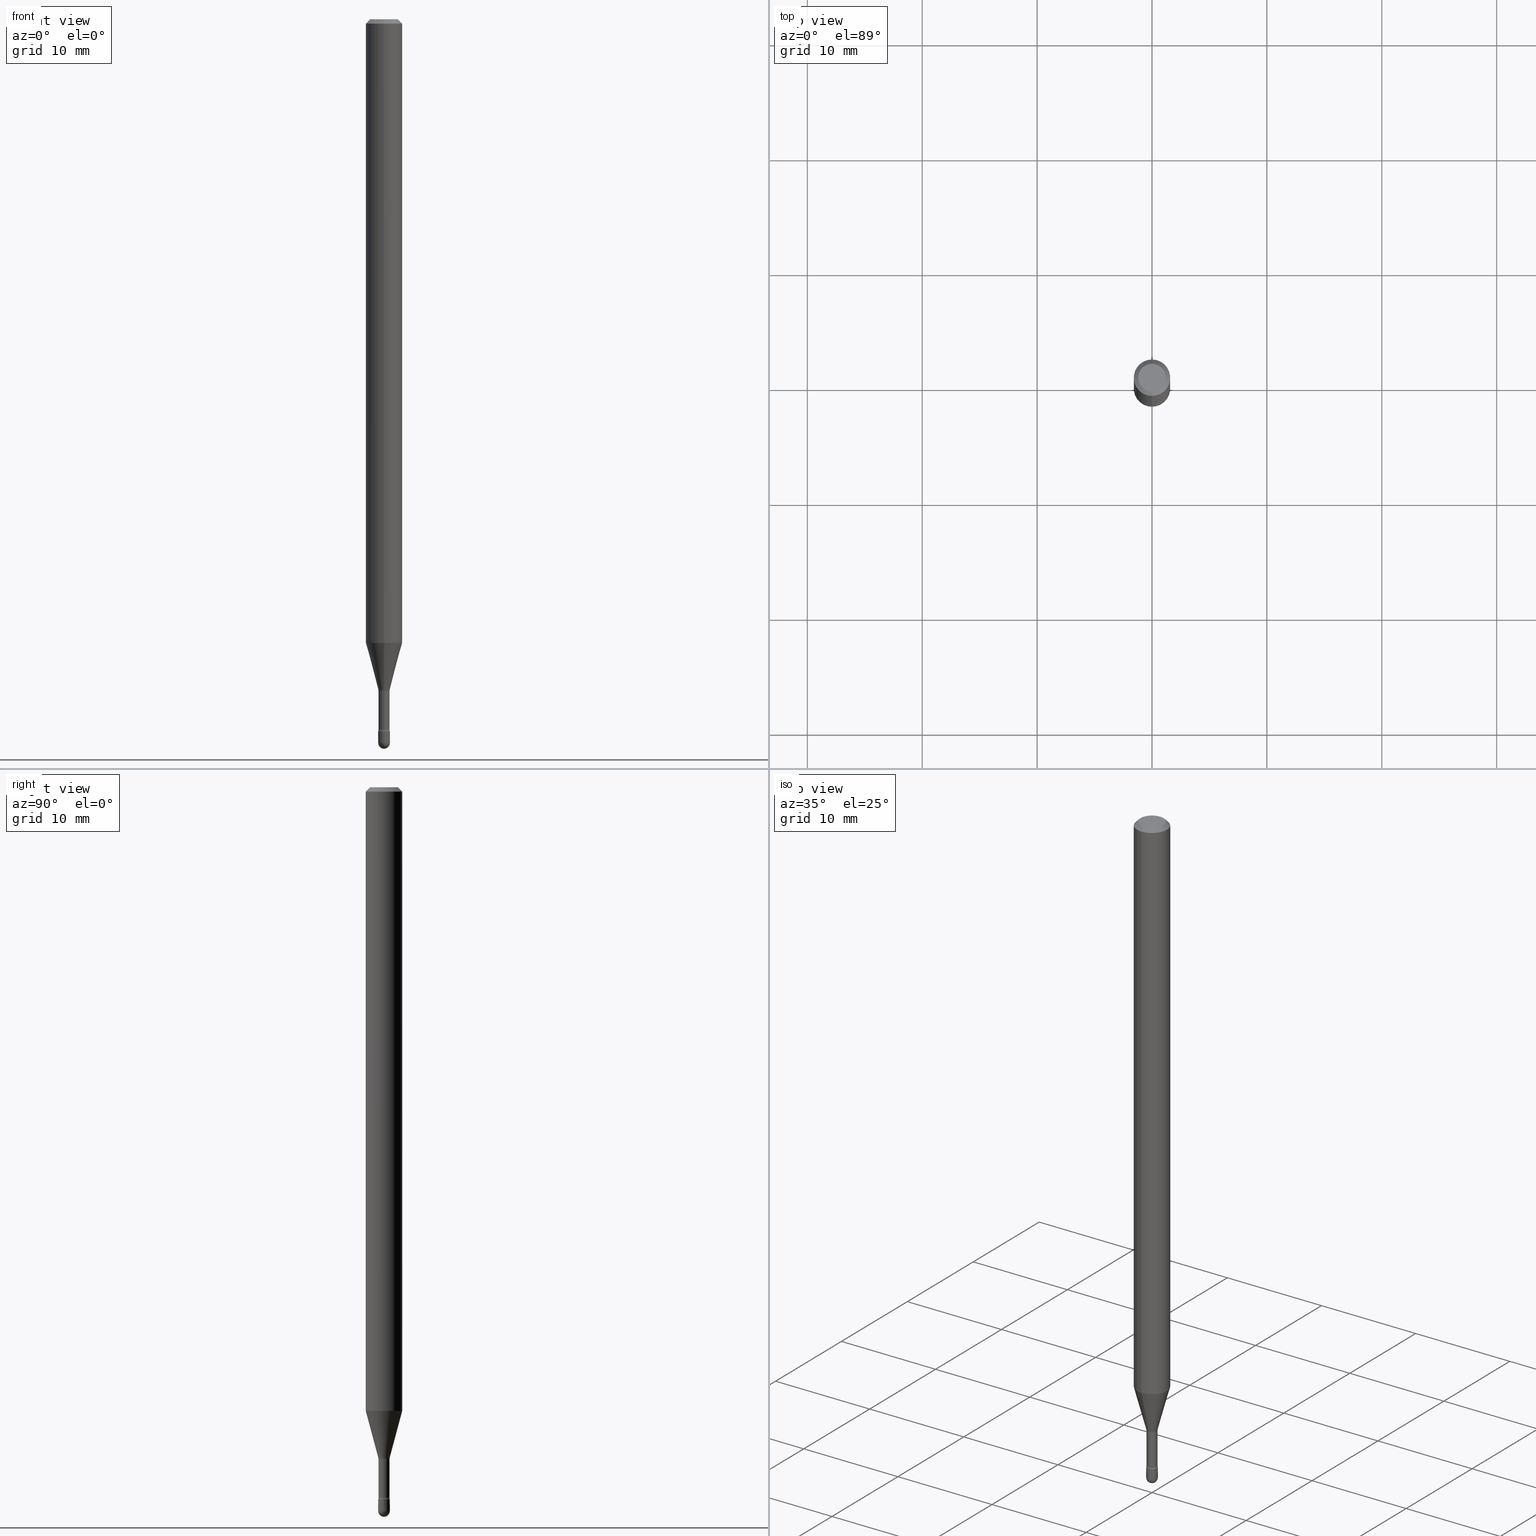
[diagram: canonical four-view strip — front | top / right | iso, engineering-drawing reading convention]
A machine part, canonical four-view strip (front | top / right | iso — engineering-drawing reading convention). The complete STEP part file that produces these views, byte-faithful:
ISO-10303-21;
HEADER;
FILE_DESCRIPTION (( 'STEP AP203' ),
    '1' );
FILE_NAME ('09460.STEP',
    '2024-04-09T23:25:25',
    ( '' ),
    ( '' ),
    'SwSTEP 2.0',
    'SolidWorks 2023',
    '' );
FILE_SCHEMA (( 'CONFIG_CONTROL_DESIGN' ));
ENDSEC;

DATA;
#1 = ORIENTED_EDGE ( 'NONE', *, *, #402, .T. ) ;
#2 = CARTESIAN_POINT ( 'NONE',  ( -1.312796983405020727E-16, -0.01880000000000003543, 5.437145196789325155E-16 ) ) ;
#3 = CARTESIAN_POINT ( 'NONE',  ( 2.401634446869736943E-16, 0.03379999999999155208, -2.434121224617320944 ) ) ;
#4 = AXIS2_PLACEMENT_3D ( 'NONE', #401, #202, #239 ) ;
#5 = FACE_OUTER_BOUND ( 'NONE', #67, .T. ) ;
#6 = DIRECTION ( 'NONE',  ( -1.000000000000000000, 6.982962677686265133E-15, -4.883557194083112340E-29 ) ) ;
#7 = CC_DESIGN_DATE_AND_TIME_ASSIGNMENT ( #375, #427, ( #458 ) ) ;
#8 = EDGE_LOOP ( 'NONE', ( #355, #469, #60, #433 ) ) ;
#9 = DATE_AND_TIME ( #99, #247 ) ;
#10 = DIRECTION ( 'NONE',  ( 1.000000000000000000, -6.982962677686284065E-15, 0.000000000000000000 ) ) ;
#11 = ADVANCED_FACE ( 'NONE', ( #172 ), #544, .F. ) ;
#12 = DIRECTION ( 'NONE',  ( 1.000000000000000000, -6.982962677686265922E-15, 4.883557194083112340E-29 ) ) ;
#13 = CALENDAR_DATE ( 2024, 9, 4 ) ;
#14 = DIRECTION ( 'NONE',  ( -2.438088387897960049E-29, 3.491481338843145188E-15, 1.000000000000000000 ) ) ;
#15 = FACE_OUTER_BOUND ( 'NONE', #523, .T. ) ;
#16 = EDGE_CURVE ( 'NONE', #457, #145, #508, .T. ) ;
#17 = FACE_OUTER_BOUND ( 'NONE', #423, .T. ) ;
#18 = DIRECTION ( 'NONE',  ( 1.839019923739597160E-15, 0.2588190451025245142, 0.9659258262890673130 ) ) ;
#19 = ORIENTED_EDGE ( 'NONE', *, *, #57, .T. ) ;
#20 = DIRECTION ( 'NONE',  ( -6.982962677686262766E-15, -1.000000000000000000, 0.000000000000000000 ) ) ;
#21 = AXIS2_PLACEMENT_3D ( 'NONE', #218, #123, #479 ) ;
#22 = CIRCLE ( 'NONE', #317, 0.02000000000000000042 ) ;
#23 = CARTESIAN_POINT ( 'NONE',  ( -4.364351673553395060E-16, -0.06250000000000748013, -2.136909379709240220 ) ) ;
#24 = CARTESIAN_POINT ( 'NONE',  ( 5.952452556329128680E-29, -8.498853474307259239E-15, -2.434121224617320944 ) ) ;
#25 = APPROVAL_STATUS ( 'not_yet_approved' ) ;
#26 = VERTEX_POINT ( 'NONE', #512 ) ;
#27 = APPROVAL_STATUS ( 'not_yet_approved' ) ;
#28 = CARTESIAN_POINT ( 'NONE',  ( 5.619804982841411344E-29, -8.023902526122054081E-15, -2.298092501787273090 ) ) ;
#29 = PERSON_AND_ORGANIZATION_ROLE ( 'creator' ) ;
#30 = AXIS2_PLACEMENT_3D ( 'NONE', #276, #308, #10 ) ;
#31 = CIRCLE ( 'NONE', #279, 0.01500000000000002720 ) ;
#32 = PRODUCT_DEFINITION_FORMATION_WITH_SPECIFIED_SOURCE ( 'ANY', '', #326, .NOT_KNOWN. ) ;
#33 = ORIENTED_EDGE ( 'NONE', *, *, #402, .F. ) ;
#34 = CC_DESIGN_DATE_AND_TIME_ASSIGNMENT ( #180, #249, ( #55 ) ) ;
#35 = CARTESIAN_POINT ( 'NONE',  ( 5.952567525274821981E-29, -8.498688832233400382E-15, -2.434121224617320944 ) ) ;
#36 = ADVANCED_FACE ( 'NONE', ( #404 ), #203, .T. ) ;
#37 = VERTEX_POINT ( 'NONE', #207 ) ;
#38 = CYLINDRICAL_SURFACE ( 'NONE', #220, 0.01880000000000003543 ) ;
#39 = VERTEX_POINT ( 'NONE', #121 ) ;
#40 = APPLICATION_PROTOCOL_DEFINITION ( 'international standard', 'config_control_design', 1994, #119 ) ;
#41 = COORDINATED_UNIVERSAL_TIME_OFFSET ( 5, 0, .BEHIND. ) ;
#42 = DIRECTION ( 'NONE',  ( 2.445421573966572073E-29, -3.491548978068420720E-15, -1.000000000000000000 ) ) ;
#43 = VECTOR ( 'NONE', #292, 39.37007874015748143 ) ;
#44 = TOROIDAL_SURFACE ( 'NONE', #141, 0.03380000000000004529, 0.01499999999999997169 ) ;
#45 = VERTEX_POINT ( 'NONE', #288 ) ;
#46 = VECTOR ( 'NONE', #59, 39.37007874015748143 ) ;
#47 = DIRECTION ( 'NONE',  ( -2.445421573966572073E-29, 3.491548978068420720E-15, 1.000000000000000000 ) ) ;
#48 = CARTESIAN_POINT ( 'NONE',  ( 2.906514588320848063E-16, 0.01931111260565596122, -2.298092501787273090 ) ) ;
#49 = CARTESIAN_POINT ( 'NONE',  ( 5.966828640478436565E-29, -8.519379506486946099E-15, -2.440000000000000391 ) ) ;
#50 = DIRECTION ( 'NONE',  ( -7.105427357601000281E-15, -1.000000000000000000, 0.000000000000000000 ) ) ;
#51 = LINE ( 'NONE', #492, #561 ) ;
#52 = ORIENTED_EDGE ( 'NONE', *, *, #484, .F. ) ;
#53 = CIRCLE ( 'NONE', #93, 0.02000000000000000042 ) ;
#54 = APPROVAL ( #25, 'UNSPECIFIED' ) ;
#55 = SECURITY_CLASSIFICATION ( '', '', #131 ) ;
#56 = LINE ( 'NONE', #192, #163 ) ;
#57 = EDGE_CURVE ( 'NONE', #468, #107, #199, .T. ) ;
#58 = CARTESIAN_POINT ( 'NONE',  ( 5.619804982841411344E-29, -8.023902526122054081E-15, -2.298092501787273090 ) ) ;
#59 = DIRECTION ( 'NONE',  ( -2.445421573966572073E-29, 3.491548978068420720E-15, 1.000000000000000000 ) ) ;
#60 = ORIENTED_EDGE ( 'NONE', *, *, #222, .T. ) ;
#61 = EDGE_CURVE ( 'NONE', #107, #468, #305, .T. ) ;
#62 = AXIS2_PLACEMENT_3D ( 'NONE', #73, #466, #340 ) ;
#63 = FACE_OUTER_BOUND ( 'NONE', #376, .T. ) ;
#64 = AXIS2_PLACEMENT_3D ( 'NONE', #444, #112, #282 ) ;
#65 = CC_DESIGN_APPROVAL ( #54, ( #55 ) ) ;
#66 = LINE ( 'NONE', #542, #219 ) ;
#67 = EDGE_LOOP ( 'NONE', ( #364, #1, #133, #480 ) ) ;
#68 = MANIFOLD_SOLID_BREP ( 'Body-Move/Copy2[2]', #91 ) ;
#69 = ORIENTED_EDGE ( 'NONE', *, *, #478, .T. ) ;
#70 = CARTESIAN_POINT ( 'NONE',  ( 1.421085471520795991E-16, 0.01999999999999146905, -2.440000000000000391 ) ) ;
#71 = PERSON ( 'UNSPECIFIED', 'UNSPECIFIED', 'UNSPECIFIED', ('UNSPECIFIED'), ('UNSPECIFIED'), ('UNSPECIFIED') ) ;
#72 = EDGE_CURVE ( 'NONE', #302, #301, #85, .T. ) ;
#73 = CARTESIAN_POINT ( 'NONE',  ( 3.316907271900976096E-16, 0.04749999999999999362, 3.181621338320067871E-17 ) ) ;
#74 = CIRCLE ( 'NONE', #353, 0.02000000000000000042 ) ;
#75 = DIRECTION ( 'NONE',  ( -6.982962677686265922E-15, -1.000000000000000000, 0.000000000000000000 ) ) ;
#76 = COORDINATED_UNIVERSAL_TIME_OFFSET ( 5, 0, .BEHIND. ) ;
#77 = CARTESIAN_POINT ( 'NONE',  ( 1.335820343229585224E-16, 0.01879999999999196550, -2.301974787463811012 ) ) ;
#78 = DIRECTION ( 'NONE',  ( 0.000000000000000000, 0.000000000000000000, 1.000000000000000000 ) ) ;
#79 = DIRECTION ( 'NONE',  ( -2.445421573966572073E-29, 3.491548978068420720E-15, 1.000000000000000000 ) ) ;
#80 = CC_DESIGN_PERSON_AND_ORGANIZATION_ASSIGNMENT ( #418, #29, ( #32 ) ) ;
#81 = ORIENTED_EDGE ( 'NONE', *, *, #429, .F. ) ;
#82 = DIRECTION ( 'NONE',  ( -2.445421573966572073E-29, 3.491548978068420720E-15, 1.000000000000000000 ) ) ;
#83 = ADVANCED_FACE ( 'NONE', ( #5 ), #425, .T. ) ;
#84 = APPROVAL_STATUS ( 'not_yet_approved' ) ;
#85 = CIRCLE ( 'NONE', #278, 0.01999999999999989286 ) ;
#86 = CIRCLE ( 'NONE', #30, 0.02000000000000000042 ) ;
#87 = ORIENTED_EDGE ( 'NONE', *, *, #185, .F. ) ;
#88 =( CONVERSION_BASED_UNIT ( 'INCH', #515 ) LENGTH_UNIT ( ) NAMED_UNIT ( #411 ) );
#89 = DIRECTION ( 'NONE',  ( -6.982962677686265922E-15, -1.000000000000000000, 3.491548978068421114E-15 ) ) ;
#90 = APPROVAL_DATE_TIME ( #344, #356 ) ;
#91 = CLOSED_SHELL ( 'NONE', ( #417, #497, #154, #118, #83, #387, #198, #531, #337, #11, #370, #558, #493, #191 ) ) ;
#92 = EDGE_CURVE ( 'NONE', #107, #45, #169, .T. ) ;
#93 = AXIS2_PLACEMENT_3D ( 'NONE', #49, #47, #271 ) ;
#94 = AXIS2_PLACEMENT_3D ( 'NONE', #554, #261, #178 ) ;
#95 = DIRECTION ( 'NONE',  ( -2.445421573966572073E-29, 3.491548978068420720E-15, 1.000000000000000000 ) ) ;
#96 = ORIENTED_EDGE ( 'NONE', *, *, #262, .T. ) ;
#97 = APPROVAL_ROLE ( '' ) ;
#98 = CARTESIAN_POINT ( 'NONE',  ( 5.629407535367409882E-29, -8.037302012917312840E-15, -2.301974787463811012 ) ) ;
#99 = CALENDAR_DATE ( 2024, 9, 4 ) ;
#100 = DIRECTION ( 'NONE',  ( 1.000000000000000000, -6.982962677686235945E-15, 0.000000000000000000 ) ) ;
#101 = AXIS2_PLACEMENT_3D ( 'NONE', #158, #330, #254 ) ;
#102 = AXIS2_PLACEMENT_3D ( 'NONE', #223, #319, #528 ) ;
#103 = AXIS2_PLACEMENT_3D ( 'NONE', #35, #82, #461 ) ;
#104 = SPHERICAL_SURFACE ( 'NONE', #201, 0.01999999999999989286 ) ;
#105 = ORIENTED_EDGE ( 'NONE', *, *, #92, .T. ) ;
#106 = SPHERICAL_SURFACE ( 'NONE', #496, 0.01999999999999989286 ) ;
#107 = VERTEX_POINT ( 'NONE', #48 ) ;
#108 = CYLINDRICAL_SURFACE ( 'NONE', #230, 0.01880000000000003543 ) ;
#109 = EDGE_LOOP ( 'NONE', ( #33, #128, #69, #231 ) ) ;
#110 = COORDINATED_UNIVERSAL_TIME_OFFSET ( 5, 0, .BEHIND. ) ;
#111 = AXIS2_PLACEMENT_3D ( 'NONE', #24, #79, #386 ) ;
#112 = DIRECTION ( 'NONE',  ( -2.445421573966572073E-29, 3.491548978068420720E-15, 1.000000000000000000 ) ) ;
#113 = APPROVAL_PERSON_ORGANIZATION ( #379, #356, #471 ) ;
#114 = CIRCLE ( 'NONE', #94, 0.04749999999999999362 ) ;
#115 = DIRECTION ( 'NONE',  ( -1.000000000000000000, 6.982962677686265922E-15, -4.883557194083112340E-29 ) ) ;
#116 = PLANE ( 'NONE',  #324 ) ;
#117 = ORIENTED_EDGE ( 'NONE', *, *, #525, .T. ) ;
#118 = ADVANCED_FACE ( 'NONE', ( #463 ), #267, .T. ) ;
#119 = APPLICATION_CONTEXT ( 'configuration controlled 3d designs of mechanical parts and assemblies' ) ;
#120 = DIRECTION ( 'NONE',  ( -2.445468806185136597E-29, 3.491481338843145583E-15, 1.000000000000000000 ) ) ;
#121 = CARTESIAN_POINT ( 'NONE',  ( 4.440892098501151740E-16, 0.06249999999999995143, -0.01500000000000030129 ) ) ;
#122 = CIRCLE ( 'NONE', #431, 0.01499999999999997689 ) ;
#123 = DIRECTION ( 'NONE',  ( -2.445421573966572073E-29, 3.491548978068420720E-15, 1.000000000000000000 ) ) ;
#124 = EDGE_LOOP ( 'NONE', ( #410, #450, #434, #87, #136 ) ) ;
#125 = DIRECTION ( 'NONE',  ( 1.000000000000000000, -6.982962677686235945E-15, 0.000000000000000000 ) ) ;
#126 = DATE_AND_TIME ( #162, #552 ) ;
#127 = EDGE_CURVE ( 'NONE', #145, #26, #245, .T. ) ;
#128 = ORIENTED_EDGE ( 'NONE', *, *, #140, .T. ) ;
#129 = ORIENTED_EDGE ( 'NONE', *, *, #439, .T. ) ;
#130 = DIRECTION ( 'NONE',  ( 1.000000000000000000, -6.982962677686284065E-15, 0.000000000000000000 ) ) ;
#131 = SECURITY_CLASSIFICATION_LEVEL ( 'unclassified' ) ;
#132 = CIRCLE ( 'NONE', #102, 0.06250000000000000000 ) ;
#133 = ORIENTED_EDGE ( 'NONE', *, *, #453, .F. ) ;
#134 = CARTESIAN_POINT ( 'NONE',  ( 0.000000000000000000, 0.000000000000000000, 0.000000000000000000 ) ) ;
#135 = EDGE_CURVE ( 'NONE', #37, #39, #248, .T. ) ;
#136 = ORIENTED_EDGE ( 'NONE', *, *, #464, .T. ) ;
#137 = CARTESIAN_POINT ( 'NONE',  ( 3.668132360949878113E-31, -5.237323467102660391E-17, -0.01500000000000008271 ) ) ;
#138 = ORIENTED_EDGE ( 'NONE', *, *, #405, .T. ) ;
#139 = CARTESIAN_POINT ( 'NONE',  ( -1.421085471519589527E-16, -0.02000000000000860464, -2.480000000000000426 ) ) ;
#140 = EDGE_CURVE ( 'NONE', #45, #327, #481, .T. ) ;
#141 = AXIS2_PLACEMENT_3D ( 'NONE', #265, #409, #372 ) ;
#142 = DIRECTION ( 'NONE',  ( -4.851104656540964275E-15, -0.7071067811865500152, -0.7071067811865450192 ) ) ;
#143 = FACE_OUTER_BOUND ( 'NONE', #173, .T. ) ;
#144 = EDGE_LOOP ( 'NONE', ( #310, #296 ) ) ;
#145 = VERTEX_POINT ( 'NONE', #77 ) ;
#146 = CARTESIAN_POINT ( 'NONE',  ( -4.364351673553912750E-16, -0.06250000000000005551, -0.01499999999999986587 ) ) ;
#147 = ORIENTED_EDGE ( 'NONE', *, *, #281, .T. ) ;
#148 = AXIS2_PLACEMENT_3D ( 'NONE', #149, #314, #527 ) ;
#149 = CARTESIAN_POINT ( 'NONE',  ( 0.000000000000000000, 0.000000000000000000, 0.000000000000000000 ) ) ;
#150 = DIRECTION ( 'NONE',  ( -2.445421573966572073E-29, 3.491548978068420720E-15, 1.000000000000000000 ) ) ;
#151 = DIRECTION ( 'NONE',  ( -6.982962677686265133E-15, -1.000000000000000000, 0.000000000000000000 ) ) ;
#152 = AXIS2_PLACEMENT_3D ( 'NONE', #98, #485, #530 ) ;
#153 = DIRECTION ( 'NONE',  ( 1.000000000000000000, -7.105427357601001070E-15, 4.926316336883689215E-29 ) ) ;
#154 = ADVANCED_FACE ( 'NONE', ( #166 ), #44, .F. ) ;
#155 = CARTESIAN_POINT ( 'NONE',  ( -1.396592535536655829E-16, -0.02000000000000850750, -2.440000000000000391 ) ) ;
#156 = DIRECTION ( 'NONE',  ( -6.982962677686265922E-15, -1.000000000000000000, 0.000000000000000000 ) ) ;
#157 = DIRECTION ( 'NONE',  ( -2.445421573966572073E-29, 3.491548978068420720E-15, 1.000000000000000000 ) ) ;
#158 = CARTESIAN_POINT ( 'NONE',  ( 0.000000000000000000, 0.000000000000000000, 0.000000000000000000 ) ) ;
#159 = ORIENTED_EDGE ( 'NONE', *, *, #443, .T. ) ;
#160 = CARTESIAN_POINT ( 'NONE',  ( 5.629298807991117552E-29, -8.037457716708539274E-15, -2.301974787463811012 ) ) ;
#161 = ORIENTED_EDGE ( 'NONE', *, *, #268, .F. ) ;
#162 = CALENDAR_DATE ( 2024, 9, 4 ) ;
#163 = VECTOR ( 'NONE', #225, 39.37007874015748143 ) ;
#164 = EDGE_CURVE ( 'NONE', #507, #457, #398, .T. ) ;
#165 = APPROVAL_PERSON_ORGANIZATION ( #416, #413, #97 ) ;
#166 = FACE_OUTER_BOUND ( 'NONE', #260, .T. ) ;
#167 = ORIENTED_EDGE ( 'NONE', *, *, #232, .T. ) ;
#168 = DIRECTION ( 'NONE',  ( -2.445421573966572073E-29, 3.491548978068420720E-15, 1.000000000000000000 ) ) ;
#169 = LINE ( 'NONE', #486, #297 ) ;
#170 = ORIENTED_EDGE ( 'NONE', *, *, #298, .T. ) ;
#171 = PERSON_AND_ORGANIZATION ( #71, #238 ) ;
#172 = FACE_OUTER_BOUND ( 'NONE', #430, .T. ) ;
#173 = EDGE_LOOP ( 'NONE', ( #521, #446, #52, #389 ) ) ;
#174 = EDGE_LOOP ( 'NONE', ( #560, #227 ) ) ;
#175 = AXIS2_PLACEMENT_3D ( 'NONE', #58, #95, #274 ) ;
#176 = AXIS2_PLACEMENT_3D ( 'NONE', #134, #78, #206 ) ;
#177 = VERTEX_POINT ( 'NONE', #205 ) ;
#178 = DIRECTION ( 'NONE',  ( -6.982962677686266711E-15, -1.000000000000000000, 3.491548978068420720E-15 ) ) ;
#179 = EDGE_CURVE ( 'NONE', #457, #507, #406, .T. ) ;
#180 = DATE_AND_TIME ( #549, #506 ) ;
#181 = LINE ( 'NONE', #347, #280 ) ;
#182 = DIRECTION ( 'NONE',  ( 7.105427357601003436E-15, 1.000000000000000000, 0.000000000000000000 ) ) ;
#183 = ORIENTED_EDGE ( 'NONE', *, *, #164, .T. ) ;
#184 = DIRECTION ( 'NONE',  ( -6.982962677686265922E-15, -1.000000000000000000, 3.483106191921935554E-15 ) ) ;
#185 = EDGE_CURVE ( 'NONE', #295, #177, #181, .T. ) ;
#186 = AXIS2_PLACEMENT_3D ( 'NONE', #277, #150, #242 ) ;
#187 = TOROIDAL_SURFACE ( 'NONE', #103, 0.03380000000000004529, 0.01499999999999997169 ) ;
#188 = DIRECTION ( 'NONE',  ( 6.982962677686265133E-15, 1.000000000000000000, 0.000000000000000000 ) ) ;
#189 = ADVANCED_BREP_SHAPE_REPRESENTATION ( '09460', ( #253, #68, #176 ), #399 ) ;
#190 = FACE_OUTER_BOUND ( 'NONE', #408, .T. ) ;
#191 = ADVANCED_FACE ( 'NONE', ( #266 ), #237, .F. ) ;
#192 = CARTESIAN_POINT ( 'NONE',  ( -0.02000000000000000042, 1.421085471520200401E-16, -9.837870180509812545E-31 ) ) ;
#193 = AXIS2_PLACEMENT_3D ( 'NONE', #482, #390, #184 ) ;
#194 = CARTESIAN_POINT ( 'NONE',  ( 3.668132360949878113E-31, -5.237323467102660391E-17, -0.01500000000000008271 ) ) ;
#195 = ADVANCED_FACE ( 'NONE', ( #190 ), #359, .T. ) ;
#196 = DIRECTION ( 'NONE',  ( 2.445421573966572073E-29, -3.491548978068420720E-15, -1.000000000000000000 ) ) ;
#197 = DIRECTION ( 'NONE',  ( 1.000000000000000000, -6.982962677686265922E-15, 4.876176775795935793E-29 ) ) ;
#198 = ADVANCED_FACE ( 'NONE', ( #529 ), #333, .T. ) ;
#199 = CIRCLE ( 'NONE', #550, 0.01931111260566398605 ) ;
#200 = VERTEX_POINT ( 'NONE', #270 ) ;
#201 = AXIS2_PLACEMENT_3D ( 'NONE', #487, #394, #188 ) ;
#202 = DIRECTION ( 'NONE',  ( -2.445421573966572073E-29, 3.491548978068420720E-15, 1.000000000000000000 ) ) ;
#203 = CYLINDRICAL_SURFACE ( 'NONE', #101, 0.02000000000000000042 ) ;
#204 = CARTESIAN_POINT ( 'NONE',  ( 5.619804982841411344E-29, -8.023902526122054081E-15, -2.298092501787273090 ) ) ;
#205 = CARTESIAN_POINT ( 'NONE',  ( 0.02000000000000000042, -8.658873720331001644E-15, -2.440000000000000391 ) ) ;
#206 = DIRECTION ( 'NONE',  ( 1.000000000000000000, 0.000000000000000000, 0.000000000000000000 ) ) ;
#207 = CARTESIAN_POINT ( 'NONE',  ( 3.840629472727447874E-16, 0.04749999999999999362, -2.485923956665947867E-16 ) ) ;
#208 = APPROVAL_DATE_TIME ( #126, #54 ) ;
#209 = DIRECTION ( 'NONE',  ( -6.982962677686267499E-15, -1.000000000000000000, 3.491548978068421114E-15 ) ) ;
#210 = AXIS2_PLACEMENT_3D ( 'NONE', #194, #196, #534 ) ;
#211 = CIRCLE ( 'NONE', #300, 0.06250000000000000000 ) ;
#212 = ORIENTED_EDGE ( 'NONE', *, *, #16, .F. ) ;
#213 =( LENGTH_UNIT ( ) NAMED_UNIT ( * ) SI_UNIT ( $, .METRE. ) );
#214 = ORIENTED_EDGE ( 'NONE', *, *, #61, .F. ) ;
#215 = EDGE_CURVE ( 'NONE', #545, #177, #86, .T. ) ;
#216 = EDGE_LOOP ( 'NONE', ( #373, #488, #138, #129 ) ) ;
#217 = DIRECTION ( 'NONE',  ( -6.982962677686267499E-15, -1.000000000000000000, 3.491548978068421114E-15 ) ) ;
#218 = CARTESIAN_POINT ( 'NONE',  ( 5.225644298752501589E-29, -7.461123760948621165E-15, -2.136909379709240220 ) ) ;
#219 = VECTOR ( 'NONE', #533, 39.37007874015748143 ) ;
#220 = AXIS2_PLACEMENT_3D ( 'NONE', #383, #559, #209 ) ;
#221 = VERTEX_POINT ( 'NONE', #146 ) ;
#222 = EDGE_CURVE ( 'NONE', #468, #327, #489, .T. ) ;
#223 = CARTESIAN_POINT ( 'NONE',  ( 5.225644298752501589E-29, -7.461123760948621165E-15, -2.136909379709240220 ) ) ;
#224 = ORIENTED_EDGE ( 'NONE', *, *, #464, .F. ) ;
#225 = DIRECTION ( 'NONE',  ( -2.445468806185136877E-29, 3.491481338843145188E-15, 1.000000000000000000 ) ) ;
#226 = EDGE_CURVE ( 'NONE', #336, #380, #53, .T. ) ;
#227 = ORIENTED_EDGE ( 'NONE', *, *, #226, .F. ) ;
#228 = COORDINATED_UNIVERSAL_TIME_OFFSET ( 5, 0, .BEHIND. ) ;
#229 = CARTESIAN_POINT ( 'NONE',  ( -1.348487785898921844E-16, -0.01931111260567201088, -2.298092501787273090 ) ) ;
#230 = AXIS2_PLACEMENT_3D ( 'NONE', #335, #168, #217 ) ;
#231 = ORIENTED_EDGE ( 'NONE', *, *, #315, .F. ) ;
#232 = EDGE_CURVE ( 'NONE', #457, #336, #343, .T. ) ;
#233 = DIRECTION ( 'NONE',  ( -2.445468806185136597E-29, 3.491481338843145583E-15, 1.000000000000000000 ) ) ;
#234 = ADVANCED_FACE ( 'NONE', ( #143 ), #104, .T. ) ;
#235 = CARTESIAN_POINT ( 'NONE',  ( 1.396592535537849721E-16, 0.01999999999999147945, -2.440000000000000391 ) ) ;
#236 = CLOSED_SHELL ( 'NONE', ( #36, #234, #445, #275, #195 ) ) ;
#237 = TOROIDAL_SURFACE ( 'NONE', #152, 0.03380000000000000365, 0.01500000000000002720 ) ;
#238 = ORGANIZATION ( 'UNSPECIFIED', 'UNSPECIFIED', '' ) ;
#239 = DIRECTION ( 'NONE',  ( -6.982962677686265922E-15, -1.000000000000000000, 0.000000000000000000 ) ) ;
#240 = PERSON_AND_ORGANIZATION_ROLE ( 'creator' ) ;
#241 = CC_DESIGN_PERSON_AND_ORGANIZATION_ASSIGNMENT ( #258, #565, ( #32 ) ) ;
#242 = DIRECTION ( 'NONE',  ( -6.982962677686265922E-15, -1.000000000000000000, 0.000000000000000000 ) ) ;
#243 = EDGE_CURVE ( 'NONE', #322, #200, #392, .T. ) ;
#244 = CARTESIAN_POINT ( 'NONE',  ( -3.773273898774340269E-16, -0.04749999999999999362, 8.310475724990511314E-17 ) ) ;
#245 = CIRCLE ( 'NONE', #441, 0.01880000000000000074 ) ;
#246 = DIRECTION ( 'NONE',  ( -6.982962677686265922E-15, -1.000000000000000000, 3.483106191921935554E-15 ) ) ;
#247 = LOCAL_TIME ( 19, 25, 25.00000000000000000, #228 ) ;
#248 = LINE ( 'NONE', #454, #384 ) ;
#249 = DATE_TIME_ROLE ( 'classification_date' ) ;
#250 = ORIENTED_EDGE ( 'NONE', *, *, #315, .T. ) ;
#251 = CARTESIAN_POINT ( 'NONE',  ( -0.02000000000000000042, -8.446935546402118183E-15, -2.440000000000000391 ) ) ;
#252 = PRODUCT_DEFINITION_SHAPE ( 'NONE', 'NONE',  #458 ) ;
#253 = MANIFOLD_SOLID_BREP ( 'Body-Move/Copy2[1]', #236 ) ;
#254 = DIRECTION ( 'NONE',  ( 1.000000000000000000, -6.982962677686265922E-15, 4.876176775795935793E-29 ) ) ;
#255 = ORIENTED_EDGE ( 'NONE', *, *, #358, .T. ) ;
#256 = CARTESIAN_POINT ( 'NONE',  ( -1.312796983404428095E-16, -0.01880000000000857374, -2.434121224617320944 ) ) ;
#257 = CIRCLE ( 'NONE', #4, 0.01880000000000000074 ) ;
#258 = PERSON_AND_ORGANIZATION ( #71, #238 ) ;
#259 = CC_DESIGN_APPROVAL ( #356, ( #32 ) ) ;
#260 = EDGE_LOOP ( 'NONE', ( #381, #167, #536, #426 ) ) ;
#261 = DIRECTION ( 'NONE',  ( -2.445421573966572073E-29, 3.491548978068420720E-15, 1.000000000000000000 ) ) ;
#262 = EDGE_CURVE ( 'NONE', #414, #221, #51, .T. ) ;
#263 = CYLINDRICAL_SURFACE ( 'NONE', #432, 0.06250000000000000000 ) ;
#264 = CARTESIAN_POINT ( 'NONE',  ( 6.064762639339139522E-29, -8.658873720331001644E-15, -2.480000000000000426 ) ) ;
#265 = CARTESIAN_POINT ( 'NONE',  ( 5.952567525274821981E-29, -8.498688832233400382E-15, -2.434121224617320944 ) ) ;
#266 = FACE_OUTER_BOUND ( 'NONE', #477, .T. ) ;
#267 = CONICAL_SURFACE ( 'NONE', #273, 0.06250000000000000000, 0.7853981633974483900 ) ;
#268 = EDGE_CURVE ( 'NONE', #327, #45, #132, .T. ) ;
#269 = DIRECTION ( 'NONE',  ( -6.982962677686265922E-15, -1.000000000000000000, 0.000000000000000000 ) ) ;
#270 = CARTESIAN_POINT ( 'NONE',  ( -0.02000000000000000042, -8.446935546402118183E-15, -2.480000000000000426 ) ) ;
#271 = DIRECTION ( 'NONE',  ( -6.982962677686265922E-15, -1.000000000000000000, 0.000000000000000000 ) ) ;
#272 = CARTESIAN_POINT ( 'NONE',  ( 6.064762639339139522E-29, -8.658873720331001644E-15, -2.480000000000000426 ) ) ;
#273 = AXIS2_PLACEMENT_3D ( 'NONE', #137, #42, #293 ) ;
#274 = DIRECTION ( 'NONE',  ( -6.982962677686265922E-15, -1.000000000000000000, 0.000000000000000000 ) ) ;
#275 = ADVANCED_FACE ( 'NONE', ( #391 ), #106, .T. ) ;
#276 = CARTESIAN_POINT ( 'NONE',  ( 5.966943887091733341E-29, -8.519214466777275048E-15, -2.440000000000000391 ) ) ;
#277 = CARTESIAN_POINT ( 'NONE',  ( 5.966828640478436565E-29, -8.519379506486946099E-15, -2.440000000000000391 ) ) ;
#278 = AXIS2_PLACEMENT_3D ( 'NONE', #264, #519, #50 ) ;
#279 = AXIS2_PLACEMENT_3D ( 'NONE', #500, #153, #365 ) ;
#280 = VECTOR ( 'NONE', #520, 39.37007874015748143 ) ;
#281 = EDGE_CURVE ( 'NONE', #302, #322, #316, .T. ) ;
#282 = DIRECTION ( 'NONE',  ( -6.982962677686266711E-15, -1.000000000000000000, 3.491548978068420720E-15 ) ) ;
#283 = CARTESIAN_POINT ( 'NONE',  ( 5.629407535367409882E-29, -8.037302012917312840E-15, -2.301974787463811012 ) ) ;
#284 = PLANE ( 'NONE',  #368 ) ;
#285 = AXIS2_PLACEMENT_3D ( 'NONE', #272, #12, #440 ) ;
#286 =( NAMED_UNIT ( * ) SI_UNIT ( $, .STERADIAN. ) SOLID_ANGLE_UNIT ( ) );
#287 = APPROVAL_PERSON_ORGANIZATION ( #412, #54, #422 ) ;
#288 = CARTESIAN_POINT ( 'NONE',  ( 4.440892098501145824E-16, 0.06249999999999251987, -2.136909379709240664 ) ) ;
#289 = EDGE_CURVE ( 'NONE', #200, #545, #56, .T. ) ;
#290 = ORIENTED_EDGE ( 'NONE', *, *, #179, .T. ) ;
#291 = FACE_OUTER_BOUND ( 'NONE', #216, .T. ) ;
#292 = DIRECTION ( 'NONE',  ( -2.445421573966572073E-29, 3.491548978068420720E-15, 1.000000000000000000 ) ) ;
#293 = DIRECTION ( 'NONE',  ( 6.982962677686265922E-15, 1.000000000000000000, -3.483106191921935554E-15 ) ) ;
#294 = FACE_OUTER_BOUND ( 'NONE', #109, .T. ) ;
#295 = VERTEX_POINT ( 'NONE', #360 ) ;
#296 = ORIENTED_EDGE ( 'NONE', *, *, #215, .T. ) ;
#297 = VECTOR ( 'NONE', #18, 39.37007874015748143 ) ;
#298 = EDGE_CURVE ( 'NONE', #507, #26, #388, .T. ) ;
#299 = CIRCLE ( 'NONE', #505, 0.01500000000000002720 ) ;
#300 = AXIS2_PLACEMENT_3D ( 'NONE', #407, #157, #246 ) ;
#301 = VERTEX_POINT ( 'NONE', #139 ) ;
#302 = VERTEX_POINT ( 'NONE', #304 ) ;
#303 = DIRECTION ( 'NONE',  ( -2.445421573966572073E-29, 3.491548978068420720E-15, 1.000000000000000000 ) ) ;
#304 = CARTESIAN_POINT ( 'NONE',  ( 6.114527181752021441E-29, -8.727478700308718159E-15, -2.500000000000000000 ) ) ;
#305 = CIRCLE ( 'NONE', #323, 0.01931111260566398605 ) ;
#306 = CIRCLE ( 'NONE', #64, 0.04749999999999999362 ) ;
#307 = CIRCLE ( 'NONE', #514, 0.02000000000000000042 ) ;
#308 = DIRECTION ( 'NONE',  ( -2.445468806185136597E-29, 3.491481338843145583E-15, 1.000000000000000000 ) ) ;
#309 = CC_DESIGN_PERSON_AND_ORGANIZATION_ASSIGNMENT ( #395, #240, ( #458 ) ) ;
#310 = ORIENTED_EDGE ( 'NONE', *, *, #516, .T. ) ;
#311 = PRODUCT_RELATED_PRODUCT_CATEGORY ( 'detail', '', ( #326 ) ) ;
#312 = ORIENTED_EDGE ( 'NONE', *, *, #429, .T. ) ;
#313 = APPROVAL_DATE_TIME ( #9, #413 ) ;
#314 = DIRECTION ( 'NONE',  ( -2.445468806185136597E-29, 3.491481338843145583E-15, 1.000000000000000000 ) ) ;
#315 = EDGE_CURVE ( 'NONE', #39, #221, #351, .T. ) ;
#316 = CIRCLE ( 'NONE', #285, 0.01999999999999989286 ) ;
#317 = AXIS2_PLACEMENT_3D ( 'NONE', #537, #120, #331 ) ;
#318 = ORIENTED_EDGE ( 'NONE', *, *, #525, .F. ) ;
#319 = DIRECTION ( 'NONE',  ( -2.445421573966572073E-29, 3.491548978068420720E-15, 1.000000000000000000 ) ) ;
#320 = CARTESIAN_POINT ( 'NONE',  ( -1.348487785898921844E-16, -0.01931111260567201088, -2.298092501787273090 ) ) ;
#321 = CARTESIAN_POINT ( 'NONE',  ( -2.360241385057395071E-16, -0.03380000000000803889, -2.301974787463811012 ) ) ;
#322 = VERTEX_POINT ( 'NONE', #350 ) ;
#323 = AXIS2_PLACEMENT_3D ( 'NONE', #374, #303, #269 ) ;
#324 = AXIS2_PLACEMENT_3D ( 'NONE', #543, #14, #197 ) ;
#325 = LINE ( 'NONE', #396, #46 ) ;
#326 = PRODUCT ( '09460', '09460', '', ( #378 ) ) ;
#327 = VERTEX_POINT ( 'NONE', #23 ) ;
#328 = DIRECTION ( 'NONE',  ( -2.445421573966572073E-29, 3.491548978068420720E-15, 1.000000000000000000 ) ) ;
#329 = EDGE_CURVE ( 'NONE', #37, #414, #306, .T. ) ;
#330 = DIRECTION ( 'NONE',  ( -2.445468806185136597E-29, 3.491481338843145583E-15, 1.000000000000000000 ) ) ;
#331 = DIRECTION ( 'NONE',  ( 1.000000000000000000, -6.982962677686235945E-15, 0.000000000000000000 ) ) ;
#332 = ORIENTED_EDGE ( 'NONE', *, *, #135, .T. ) ;
#333 = CONICAL_SURFACE ( 'NONE', #175, 0.01931111260566398605, 0.2617993877991497964 ) ;
#334 = ORIENTED_EDGE ( 'NONE', *, *, #185, .T. ) ;
#335 = CARTESIAN_POINT ( 'NONE',  ( -1.169113584055446105E-44, 1.669184350826100908E-30, 4.780733988912460139E-16 ) ) ;
#336 = VERTEX_POINT ( 'NONE', #70 ) ;
#337 = ADVANCED_FACE ( 'NONE', ( #17 ), #539, .T. ) ;
#338 = ORIENTED_EDGE ( 'NONE', *, *, #135, .F. ) ;
#339 =( NAMED_UNIT ( * ) PLANE_ANGLE_UNIT ( ) SI_UNIT ( $, .RADIAN. ) );
#340 = DIRECTION ( 'NONE',  ( 6.982962677686265922E-15, 1.000000000000000000, -3.491548978068420720E-15 ) ) ;
#341 = DIRECTION ( 'NONE',  ( -2.445421573966572073E-29, 3.491548978068420720E-15, 1.000000000000000000 ) ) ;
#342 = ORIENTED_EDGE ( 'NONE', *, *, #535, .T. ) ;
#343 = CIRCLE ( 'NONE', #459, 0.01499999999999996822 ) ;
#344 = DATE_AND_TIME ( #467, #483 ) ;
#345 = ORIENTED_EDGE ( 'NONE', *, *, #484, .T. ) ;
#346 = CARTESIAN_POINT ( 'NONE',  ( -1.169113584055446105E-44, 1.669184350826100908E-30, 4.780733988912460139E-16 ) ) ;
#347 = CARTESIAN_POINT ( 'NONE',  ( 0.02000000000000000042, -1.396592535537253145E-16, 9.752353551591871936E-31 ) ) ;
#348 = CARTESIAN_POINT ( 'NONE',  ( 6.064762639339139522E-29, -8.658873720331001644E-15, -2.480000000000000426 ) ) ;
#349 = APPLICATION_CONTEXT ( 'configuration controlled 3d designs of mechanical parts and assemblies' ) ;
#350 = CARTESIAN_POINT ( 'NONE',  ( 1.396592535537856130E-16, 0.01999999999999128517, -2.480000000000000426 ) ) ;
#351 = CIRCLE ( 'NONE', #193, 0.06250000000000000000 ) ;
#352 = EDGE_LOOP ( 'NONE', ( #318, #96, #415, #338 ) ) ;
#353 = AXIS2_PLACEMENT_3D ( 'NONE', #563, #509, #130 ) ;
#354 = DIRECTION ( 'NONE',  ( 6.982962677686265133E-15, 1.000000000000000000, 0.000000000000000000 ) ) ;
#355 = ORIENTED_EDGE ( 'NONE', *, *, #92, .F. ) ;
#356 = APPROVAL ( #84, 'UNSPECIFIED' ) ;
#357 = ORIENTED_EDGE ( 'NONE', *, *, #329, .T. ) ;
#358 = EDGE_CURVE ( 'NONE', #468, #26, #299, .T. ) ;
#359 = CYLINDRICAL_SURFACE ( 'NONE', #148, 0.02000000000000000042 ) ;
#360 = CARTESIAN_POINT ( 'NONE',  ( 0.02000000000000000042, -8.728703347107863365E-15, -2.480000000000000426 ) ) ;
#361 = CONICAL_SURFACE ( 'NONE', #526, 0.01931111260566398605, 0.2617993877991497964 ) ;
#362 = AXIS2_PLACEMENT_3D ( 'NONE', #498, #451, #503 ) ;
#363 = DIRECTION ( 'NONE',  ( -2.445421573966571793E-29, 3.491548978068420720E-15, 1.000000000000000000 ) ) ;
#364 = ORIENTED_EDGE ( 'NONE', *, *, #268, .T. ) ;
#365 = DIRECTION ( 'NONE',  ( 7.105427357601001859E-15, 1.000000000000000000, 0.000000000000000000 ) ) ;
#366 = CARTESIAN_POINT ( 'NONE',  ( 1.378452907375191717E-16, 0.01879999999999157692, -2.434121224617320944 ) ) ;
#367 = AXIS2_PLACEMENT_3D ( 'NONE', #556, #341, #513 ) ;
#368 = AXIS2_PLACEMENT_3D ( 'NONE', #235, #363, #447 ) ;
#369 = FACE_OUTER_BOUND ( 'NONE', #144, .T. ) ;
#370 = ADVANCED_FACE ( 'NONE', ( #449 ), #284, .F. ) ;
#371 = DIRECTION ( 'NONE',  ( -6.982962677686265922E-15, -1.000000000000000000, 3.491548978068420720E-15 ) ) ;
#372 = DIRECTION ( 'NONE',  ( -6.982962677686265922E-15, -1.000000000000000000, 3.491548978068420720E-15 ) ) ;
#373 = ORIENTED_EDGE ( 'NONE', *, *, #232, .F. ) ;
#374 = CARTESIAN_POINT ( 'NONE',  ( 5.619804982841411344E-29, -8.023902526122054081E-15, -2.298092501787273090 ) ) ;
#375 = DATE_AND_TIME ( #13, #540 ) ;
#376 = EDGE_LOOP ( 'NONE', ( #19, #105, #161, #491 ) ) ;
#377 = AXIS2_PLACEMENT_3D ( 'NONE', #283, #403, #371 ) ;
#378 = MECHANICAL_CONTEXT ( 'NONE', #349, 'mechanical' ) ;
#379 = PERSON_AND_ORGANIZATION ( #71, #238 ) ;
#380 = VERTEX_POINT ( 'NONE', #155 ) ;
#381 = ORIENTED_EDGE ( 'NONE', *, *, #179, .F. ) ;
#382 = ORIENTED_EDGE ( 'NONE', *, *, #215, .F. ) ;
#383 = CARTESIAN_POINT ( 'NONE',  ( -1.169113584055446105E-44, 1.669184350826100908E-30, 4.780733988912460139E-16 ) ) ;
#384 = VECTOR ( 'NONE', #502, 39.37007874015748143 ) ;
#385 = PERSON_AND_ORGANIZATION_ROLE ( 'classification_officer' ) ;
#386 = DIRECTION ( 'NONE',  ( -6.982962677686265922E-15, -1.000000000000000000, 0.000000000000000000 ) ) ;
#387 = ADVANCED_FACE ( 'NONE', ( #63 ), #361, .T. ) ;
#388 = LINE ( 'NONE', #2, #448 ) ;
#389 = ORIENTED_EDGE ( 'NONE', *, *, #243, .F. ) ;
#390 = DIRECTION ( 'NONE',  ( -2.445421573966572073E-29, 3.491548978068420720E-15, 1.000000000000000000 ) ) ;
#391 = FACE_OUTER_BOUND ( 'NONE', #474, .T. ) ;
#392 = CIRCLE ( 'NONE', #473, 0.02000000000000000042 ) ;
#393 = CC_DESIGN_SECURITY_CLASSIFICATION ( #55, ( #32 ) ) ;
#394 = DIRECTION ( 'NONE',  ( -1.000000000000000000, 6.982962677686265133E-15, -4.883557194083112340E-29 ) ) ;
#395 = PERSON_AND_ORGANIZATION ( #71, #238 ) ;
#396 = CARTESIAN_POINT ( 'NONE',  ( -4.364351673553916201E-16, -0.06250000000000000000, 6.962952100205223829E-16 ) ) ;
#397 = ORIENTED_EDGE ( 'NONE', *, *, #262, .F. ) ;
#398 = CIRCLE ( 'NONE', #111, 0.01880000000000007360 ) ;
#399 =( GEOMETRIC_REPRESENTATION_CONTEXT ( 3 ) GLOBAL_UNCERTAINTY_ASSIGNED_CONTEXT ( ( #538 ) ) GLOBAL_UNIT_ASSIGNED_CONTEXT ( ( #88, #339, #286 ) ) REPRESENTATION_CONTEXT ( 'NONE', 'WORKASPACE' ) );
#400 = CARTESIAN_POINT ( 'NONE',  ( -2.360241385057365982E-16, -0.03380000000000854543, -2.434121224617320944 ) ) ;
#401 = CARTESIAN_POINT ( 'NONE',  ( 5.629298807991117552E-29, -8.037457716708539274E-15, -2.301974787463811012 ) ) ;
#402 = EDGE_CURVE ( 'NONE', #45, #39, #66, .T. ) ;
#403 = DIRECTION ( 'NONE',  ( -2.445421573966572073E-29, 3.491548978068420720E-15, 1.000000000000000000 ) ) ;
#404 = FACE_OUTER_BOUND ( 'NONE', #124, .T. ) ;
#405 = EDGE_CURVE ( 'NONE', #507, #380, #122, .T. ) ;
#406 = CIRCLE ( 'NONE', #551, 0.01880000000000007360 ) ;
#407 = CARTESIAN_POINT ( 'NONE',  ( 3.668132360949878113E-31, -5.237323467102660391E-17, -0.01500000000000008271 ) ) ;
#408 = EDGE_LOOP ( 'NONE', ( #557, #345, #342, #334, #382 ) ) ;
#409 = DIRECTION ( 'NONE',  ( -2.445421573966572073E-29, 3.491548978068420720E-15, 1.000000000000000000 ) ) ;
#410 = ORIENTED_EDGE ( 'NONE', *, *, #243, .T. ) ;
#411 = DIMENSIONAL_EXPONENTS ( 1.000000000000000000, 0.000000000000000000, 0.000000000000000000, 0.000000000000000000, 0.000000000000000000, 0.000000000000000000, 0.000000000000000000 ) ;
#412 = PERSON_AND_ORGANIZATION ( #71, #238 ) ;
#413 = APPROVAL ( #27, 'UNSPECIFIED' ) ;
#414 = VERTEX_POINT ( 'NONE', #244 ) ;
#415 = ORIENTED_EDGE ( 'NONE', *, *, #453, .T. ) ;
#416 = PERSON_AND_ORGANIZATION ( #71, #238 ) ;
#417 = ADVANCED_FACE ( 'NONE', ( #15 ), #490, .F. ) ;
#418 = PERSON_AND_ORGANIZATION ( #71, #238 ) ;
#419 = CIRCLE ( 'NONE', #186, 0.02000000000000000042 ) ;
#420 = EDGE_LOOP ( 'NONE', ( #183, #472, #517, #553 ) ) ;
#421 = CC_DESIGN_APPROVAL ( #413, ( #458 ) ) ;
#422 = APPROVAL_ROLE ( '' ) ;
#423 = EDGE_LOOP ( 'NONE', ( #397, #501, #332, #250 ) ) ;
#424 = FACE_OUTER_BOUND ( 'NONE', #420, .T. ) ;
#425 = CYLINDRICAL_SURFACE ( 'NONE', #367, 0.06250000000000000000 ) ;
#426 = ORIENTED_EDGE ( 'NONE', *, *, #405, .F. ) ;
#427 = DATE_TIME_ROLE ( 'creation_date' ) ;
#428 = DIRECTION ( 'NONE',  ( -6.982962677686265922E-15, -1.000000000000000000, 0.000000000000000000 ) ) ;
#429 = EDGE_CURVE ( 'NONE', #107, #145, #31, .T. ) ;
#430 = EDGE_LOOP ( 'NONE', ( #357, #117 ) ) ;
#431 = AXIS2_PLACEMENT_3D ( 'NONE', #400, #115, #20 ) ;
#432 = AXIS2_PLACEMENT_3D ( 'NONE', #346, #475, #89 ) ;
#433 = ORIENTED_EDGE ( 'NONE', *, *, #140, .F. ) ;
#434 = ORIENTED_EDGE ( 'NONE', *, *, #516, .F. ) ;
#435 = DIRECTION ( 'NONE',  ( -1.807323732225326984E-15, -0.2588190451025177419, 0.9659258262890690894 ) ) ;
#436 = ORIENTED_EDGE ( 'NONE', *, *, #127, .T. ) ;
#437 = CC_DESIGN_PERSON_AND_ORGANIZATION_ASSIGNMENT ( #476, #385, ( #55 ) ) ;
#438 = DIRECTION ( 'NONE',  ( 1.000000000000000000, -7.105427357601001070E-15, 4.926316336883689215E-29 ) ) ;
#439 = EDGE_CURVE ( 'NONE', #380, #336, #419, .T. ) ;
#440 = DIRECTION ( 'NONE',  ( 6.982962677686265922E-15, 1.000000000000000000, 0.000000000000000000 ) ) ;
#441 = AXIS2_PLACEMENT_3D ( 'NONE', #160, #499, #156 ) ;
#442 = CARTESIAN_POINT ( 'NONE',  ( 6.064762639339139522E-29, -8.658873720331001644E-15, -2.480000000000000426 ) ) ;
#443 = EDGE_CURVE ( 'NONE', #26, #145, #257, .T. ) ;
#444 = CARTESIAN_POINT ( 'NONE',  ( 2.023209401372098537E-45, -2.889364339127003433E-31, -8.274381920834485527E-17 ) ) ;
#445 = ADVANCED_FACE ( 'NONE', ( #369 ), #116, .T. ) ;
#446 = ORIENTED_EDGE ( 'NONE', *, *, #72, .T. ) ;
#447 = DIRECTION ( 'NONE',  ( -6.982962677686265922E-15, -1.000000000000000000, 3.491548978068420720E-15 ) ) ;
#448 = VECTOR ( 'NONE', #524, 39.37007874015748143 ) ;
#449 = FACE_OUTER_BOUND ( 'NONE', #174, .T. ) ;
#450 = ORIENTED_EDGE ( 'NONE', *, *, #289, .T. ) ;
#451 = DIRECTION ( 'NONE',  ( -2.445468806185136597E-29, 3.491481338843145583E-15, 1.000000000000000000 ) ) ;
#452 = DESIGN_CONTEXT ( 'detailed design', #119, 'design' ) ;
#453 = EDGE_CURVE ( 'NONE', #221, #39, #211, .T. ) ;
#454 = CARTESIAN_POINT ( 'NONE',  ( 4.364351673553919652E-16, 0.06249999999999995143, -0.01500000000000030129 ) ) ;
#455 = DIRECTION ( 'NONE',  ( -6.982962677686265922E-15, -1.000000000000000000, 0.000000000000000000 ) ) ;
#456 = ORIENTED_EDGE ( 'NONE', *, *, #127, .F. ) ;
#457 = VERTEX_POINT ( 'NONE', #366 ) ;
#458 = PRODUCT_DEFINITION ( 'UNKNOWN', '', #32, #452 ) ;
#459 = AXIS2_PLACEMENT_3D ( 'NONE', #3, #438, #182 ) ;
#460 = CIRCLE ( 'NONE', #362, 0.02000000000000000042 ) ;
#461 = DIRECTION ( 'NONE',  ( -6.982962677686265922E-15, -1.000000000000000000, 3.491548978068420720E-15 ) ) ;
#462 = DIRECTION ( 'NONE',  ( -2.445421573966572073E-29, 3.491548978068420720E-15, 1.000000000000000000 ) ) ;
#463 = FACE_OUTER_BOUND ( 'NONE', #352, .T. ) ;
#464 = EDGE_CURVE ( 'NONE', #295, #322, #22, .T. ) ;
#465 = APPLICATION_PROTOCOL_DEFINITION ( 'international standard', 'config_control_design', 1994, #349 ) ;
#466 = DIRECTION ( 'NONE',  ( 2.445421573966571793E-29, -3.491548978068420720E-15, -1.000000000000000000 ) ) ;
#467 = CALENDAR_DATE ( 2024, 9, 4 ) ;
#468 = VERTEX_POINT ( 'NONE', #320 ) ;
#469 = ORIENTED_EDGE ( 'NONE', *, *, #61, .T. ) ;
#470 = CARTESIAN_POINT ( 'NONE',  ( 6.064762639339139522E-29, -8.658873720331001644E-15, -2.480000000000000426 ) ) ;
#471 = APPROVAL_ROLE ( '' ) ;
#472 = ORIENTED_EDGE ( 'NONE', *, *, #16, .T. ) ;
#473 = AXIS2_PLACEMENT_3D ( 'NONE', #348, #233, #100 ) ;
#474 = EDGE_LOOP ( 'NONE', ( #547, #147, #224, #522 ) ) ;
#475 = DIRECTION ( 'NONE',  ( -2.445421573966572073E-29, 3.491548978068420720E-15, 1.000000000000000000 ) ) ;
#476 = PERSON_AND_ORGANIZATION ( #71, #238 ) ;
#477 = EDGE_LOOP ( 'NONE', ( #81, #562, #255, #159 ) ) ;
#478 = EDGE_CURVE ( 'NONE', #327, #221, #325, .T. ) ;
#479 = DIRECTION ( 'NONE',  ( -6.982962677686265922E-15, -1.000000000000000000, 4.370956789862821150E-15 ) ) ;
#480 = ORIENTED_EDGE ( 'NONE', *, *, #478, .F. ) ;
#481 = CIRCLE ( 'NONE', #21, 0.06250000000000000000 ) ;
#482 = CARTESIAN_POINT ( 'NONE',  ( 3.668132360949878113E-31, -5.237323467102660391E-17, -0.01500000000000008271 ) ) ;
#483 = LOCAL_TIME ( 19, 25, 25.00000000000000000, #76 ) ;
#484 = EDGE_CURVE ( 'NONE', #200, #301, #460, .T. ) ;
#485 = DIRECTION ( 'NONE',  ( -2.445421573966572073E-29, 3.491548978068420720E-15, 1.000000000000000000 ) ) ;
#486 = CARTESIAN_POINT ( 'NONE',  ( 1.372137078140546112E-16, 0.01931111260565596122, -2.298092501787273090 ) ) ;
#487 = CARTESIAN_POINT ( 'NONE',  ( 6.064762639339139522E-29, -8.658873720331001644E-15, -2.480000000000000426 ) ) ;
#488 = ORIENTED_EDGE ( 'NONE', *, *, #164, .F. ) ;
#489 = LINE ( 'NONE', #229, #532 ) ;
#490 = TOROIDAL_SURFACE ( 'NONE', #377, 0.03380000000000000365, 0.01500000000000002720 ) ;
#491 = ORIENTED_EDGE ( 'NONE', *, *, #222, .F. ) ;
#492 = CARTESIAN_POINT ( 'NONE',  ( -4.287811248607203282E-16, -0.06250000000000005551, -0.01499999999999986587 ) ) ;
#493 = ADVANCED_FACE ( 'NONE', ( #494 ), #108, .T. ) ;
#494 = FACE_OUTER_BOUND ( 'NONE', #518, .T. ) ;
#495 = DIRECTION ( 'NONE',  ( -1.000000000000000000, 6.982962677686265922E-15, -4.883557194083112340E-29 ) ) ;
#496 = AXIS2_PLACEMENT_3D ( 'NONE', #442, #6, #354 ) ;
#497 = ADVANCED_FACE ( 'NONE', ( #424 ), #38, .T. ) ;
#498 = CARTESIAN_POINT ( 'NONE',  ( 6.064762639339139522E-29, -8.658873720331001644E-15, -2.480000000000000426 ) ) ;
#499 = DIRECTION ( 'NONE',  ( -2.445421573966572073E-29, 3.491548978068420720E-15, 1.000000000000000000 ) ) ;
#500 = CARTESIAN_POINT ( 'NONE',  ( 2.401634446869701444E-16, 0.03379999999999196841, -2.301974787463811012 ) ) ;
#501 = ORIENTED_EDGE ( 'NONE', *, *, #329, .F. ) ;
#502 = DIRECTION ( 'NONE',  ( 4.937700262164548042E-15, 0.7071067811865451302, -0.7071067811865499042 ) ) ;
#503 = DIRECTION ( 'NONE',  ( 1.000000000000000000, -6.982962677686235945E-15, 0.000000000000000000 ) ) ;
#504 = CARTESIAN_POINT ( 'NONE',  ( 1.335820343228990867E-16, 0.01880000000000003543, 4.124322781035596110E-16 ) ) ;
#505 = AXIS2_PLACEMENT_3D ( 'NONE', #321, #495, #151 ) ;
#506 = LOCAL_TIME ( 19, 25, 25.00000000000000000, #41 ) ;
#507 = VERTEX_POINT ( 'NONE', #256 ) ;
#508 = LINE ( 'NONE', #504, #43 ) ;
#509 = DIRECTION ( 'NONE',  ( -2.445468806185136597E-29, 3.491481338843145583E-15, 1.000000000000000000 ) ) ;
#510 = SHAPE_DEFINITION_REPRESENTATION ( #252, #189 ) ;
#511 = DIRECTION ( 'NONE',  ( -2.445468806185136597E-29, 3.491481338843145583E-15, 1.000000000000000000 ) ) ;
#512 = CARTESIAN_POINT ( 'NONE',  ( -1.312796983404455212E-16, -0.01880000000000803945, -2.301974787463811012 ) ) ;
#513 = DIRECTION ( 'NONE',  ( -6.982962677686265922E-15, -1.000000000000000000, 3.491548978068421114E-15 ) ) ;
#514 = AXIS2_PLACEMENT_3D ( 'NONE', #470, #511, #125 ) ;
#515 = LENGTH_MEASURE_WITH_UNIT ( LENGTH_MEASURE( 0.02539999999999999897 ), #213 );
#516 = EDGE_CURVE ( 'NONE', #177, #545, #74, .T. ) ;
#517 = ORIENTED_EDGE ( 'NONE', *, *, #443, .F. ) ;
#518 = EDGE_LOOP ( 'NONE', ( #212, #290, #170, #456 ) ) ;
#519 = DIRECTION ( 'NONE',  ( -1.000000000000000000, 7.105427357601001070E-15, -4.926315508542082329E-29 ) ) ;
#520 = DIRECTION ( 'NONE',  ( -2.445468806185136877E-29, 3.491481338843145188E-15, 1.000000000000000000 ) ) ;
#521 = ORIENTED_EDGE ( 'NONE', *, *, #281, .F. ) ;
#522 = ORIENTED_EDGE ( 'NONE', *, *, #535, .F. ) ;
#523 = EDGE_LOOP ( 'NONE', ( #214, #312, #436, #541 ) ) ;
#524 = DIRECTION ( 'NONE',  ( -2.445421573966572073E-29, 3.491548978068420720E-15, 1.000000000000000000 ) ) ;
#525 = EDGE_CURVE ( 'NONE', #414, #37, #114, .T. ) ;
#526 = AXIS2_PLACEMENT_3D ( 'NONE', #204, #328, #455 ) ;
#527 = DIRECTION ( 'NONE',  ( 1.000000000000000000, -6.982962677686265922E-15, 4.876176775795935793E-29 ) ) ;
#528 = DIRECTION ( 'NONE',  ( -6.982962677686265922E-15, -1.000000000000000000, 4.370956789862821150E-15 ) ) ;
#529 = FACE_OUTER_BOUND ( 'NONE', #8, .T. ) ;
#530 = DIRECTION ( 'NONE',  ( -6.982962677686265922E-15, -1.000000000000000000, 3.491548978068420720E-15 ) ) ;
#531 = ADVANCED_FACE ( 'NONE', ( #294 ), #263, .T. ) ;
#532 = VECTOR ( 'NONE', #435, 39.37007874015748143 ) ;
#533 = DIRECTION ( 'NONE',  ( -2.445421573966572073E-29, 3.491548978068420720E-15, 1.000000000000000000 ) ) ;
#534 = DIRECTION ( 'NONE',  ( 6.982962677686265922E-15, 1.000000000000000000, -3.483106191921935554E-15 ) ) ;
#535 = EDGE_CURVE ( 'NONE', #301, #295, #307, .T. ) ;
#536 = ORIENTED_EDGE ( 'NONE', *, *, #226, .T. ) ;
#537 = CARTESIAN_POINT ( 'NONE',  ( 6.064762639339139522E-29, -8.658873720331001644E-15, -2.480000000000000426 ) ) ;
#538 = UNCERTAINTY_MEASURE_WITH_UNIT (LENGTH_MEASURE( 1.000000000000000082E-05 ), #88, 'distance_accuracy_value', 'NONE');
#539 = CONICAL_SURFACE ( 'NONE', #210, 0.06250000000000000000, 0.7853981633974483900 ) ;
#540 = LOCAL_TIME ( 19, 25, 25.00000000000000000, #110 ) ;
#541 = ORIENTED_EDGE ( 'NONE', *, *, #358, .F. ) ;
#542 = CARTESIAN_POINT ( 'NONE',  ( 4.440892098500625669E-16, 0.06250000000000000000, 2.598515877619697929E-16 ) ) ;
#543 = CARTESIAN_POINT ( 'NONE',  ( 5.966943887091733341E-29, -8.519214466777275048E-15, -2.440000000000000391 ) ) ;
#544 = PLANE ( 'NONE',  #62 ) ;
#545 = VERTEX_POINT ( 'NONE', #251 ) ;
#546 = DIRECTION ( 'NONE',  ( -2.445421573966572073E-29, 3.491548978068420720E-15, 1.000000000000000000 ) ) ;
#547 = ORIENTED_EDGE ( 'NONE', *, *, #72, .F. ) ;
#548 = PERSON_AND_ORGANIZATION_ROLE ( 'design_owner' ) ;
#549 = CALENDAR_DATE ( 2024, 9, 4 ) ;
#550 = AXIS2_PLACEMENT_3D ( 'NONE', #28, #462, #75 ) ;
#551 = AXIS2_PLACEMENT_3D ( 'NONE', #566, #546, #428 ) ;
#552 = LOCAL_TIME ( 19, 25, 25.00000000000000000, #555 ) ;
#553 = ORIENTED_EDGE ( 'NONE', *, *, #298, .F. ) ;
#554 = CARTESIAN_POINT ( 'NONE',  ( 2.023209401372098537E-45, -2.889364339127003433E-31, -8.274381920834485527E-17 ) ) ;
#555 = COORDINATED_UNIVERSAL_TIME_OFFSET ( 5, 0, .BEHIND. ) ;
#556 = CARTESIAN_POINT ( 'NONE',  ( -1.169113584055446105E-44, 1.669184350826100908E-30, 4.780733988912460139E-16 ) ) ;
#557 = ORIENTED_EDGE ( 'NONE', *, *, #289, .F. ) ;
#558 = ADVANCED_FACE ( 'NONE', ( #291 ), #187, .F. ) ;
#559 = DIRECTION ( 'NONE',  ( -2.445421573966572073E-29, 3.491548978068420720E-15, 1.000000000000000000 ) ) ;
#560 = ORIENTED_EDGE ( 'NONE', *, *, #439, .F. ) ;
#561 = VECTOR ( 'NONE', #142, 39.37007874015748143 ) ;
#562 = ORIENTED_EDGE ( 'NONE', *, *, #57, .F. ) ;
#563 = CARTESIAN_POINT ( 'NONE',  ( 5.966943887091733341E-29, -8.519214466777275048E-15, -2.440000000000000391 ) ) ;
#564 = CC_DESIGN_PERSON_AND_ORGANIZATION_ASSIGNMENT ( #171, #548, ( #326 ) ) ;
#565 = PERSON_AND_ORGANIZATION_ROLE ( 'design_supplier' ) ;
#566 = CARTESIAN_POINT ( 'NONE',  ( 5.952452556329128680E-29, -8.498853474307259239E-15, -2.434121224617320944 ) ) ;
ENDSEC;
END-ISO-10303-21;
